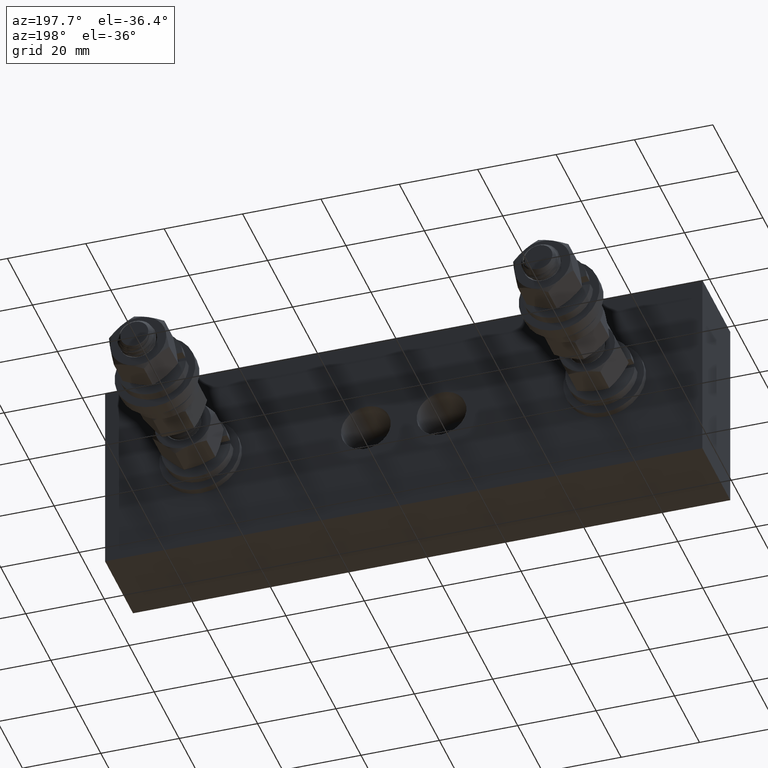
[diagram: clean part render]
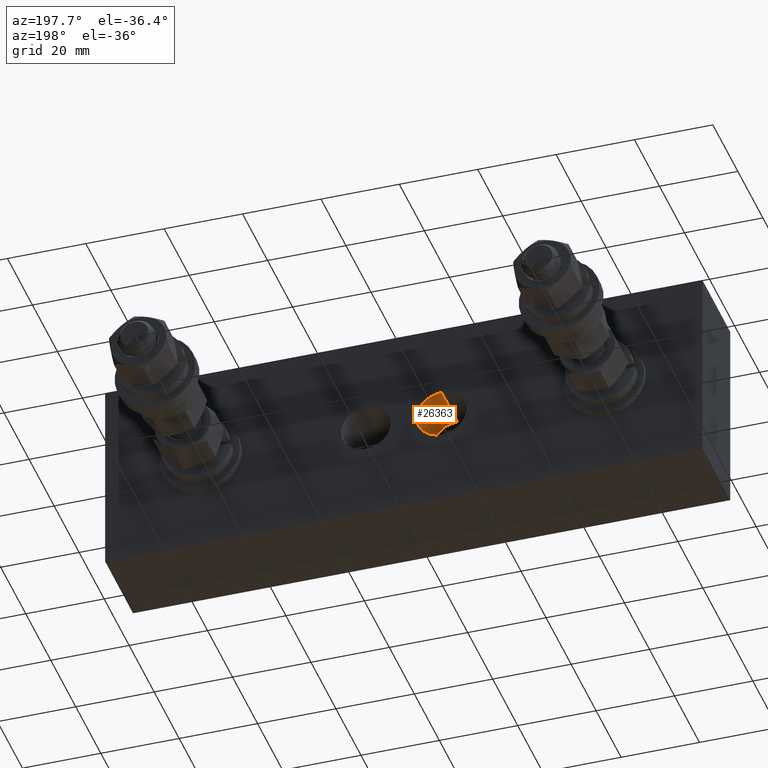
[diagram: same view with one face highlighted and labeled with its STEP entity id]
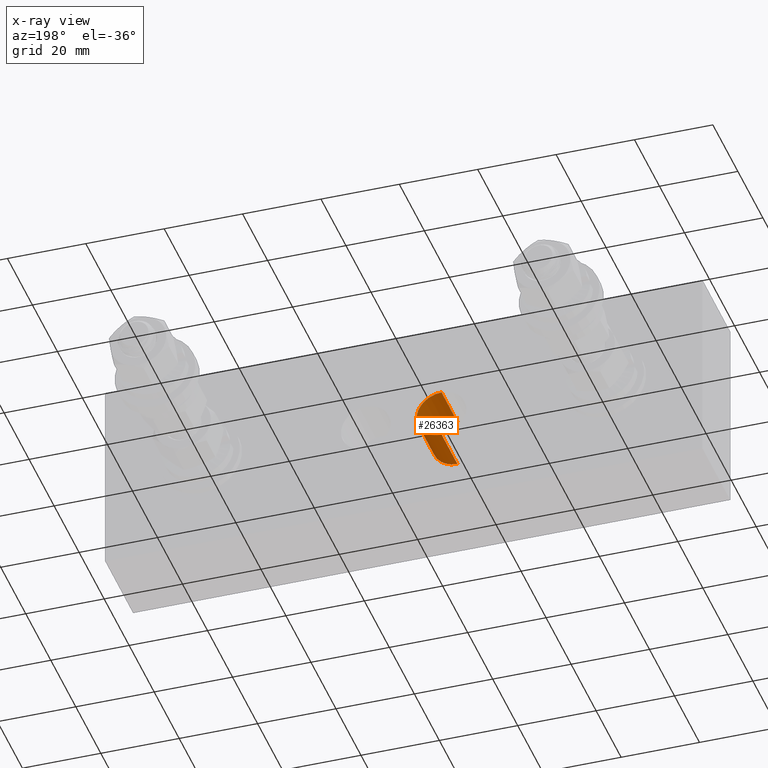
[diagram: x-ray of the same camera — body ghosted, the highlighted face saturated]
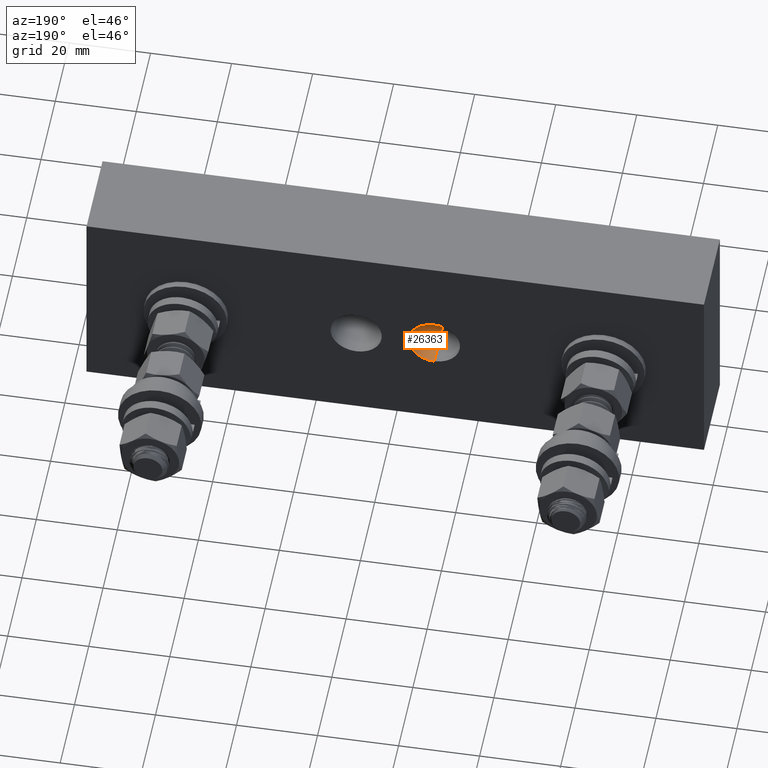
[diagram: same view with one face highlighted and labeled with its STEP entity id]
A machine part, auxiliary view. The second image highlights one B-rep face of the part: STEP entity #26363.
The next image is the same camera in x-ray: the body ghosted, the highlighted face saturated — about 0% of this face is hidden behind the body in this view.
A second angle (auxiliary view) of the same face is appended — the face is thin or edge-on in the first view.
In plain terms, the highlighted cylindrical surface (edge-blend (fillet) strip) has radius 6.35 mm, axis along (-0, 1, -0).
Its self-contained STEP definition (entity closure, byte-faithful):
#2787 = AXIS2_PLACEMENT_3D ( 'NONE', #10277, #10253, #10296 ) ;
#3701 = FACE_OUTER_BOUND ( 'NONE', #10882, .T. ) ;
#3710 = CYLINDRICAL_SURFACE ( 'NONE', #2787, 0.2500000000000000000 ) ;
#9800 = ORIENTED_EDGE ( 'NONE', *, *, #24795, .F. ) ;
#9808 = ORIENTED_EDGE ( 'NONE', *, *, #24813, .F. ) ;
#9839 = ORIENTED_EDGE ( 'NONE', *, *, #24837, .T. ) ;
#9841 = ORIENTED_EDGE ( 'NONE', *, *, #24819, .T. ) ;
#10253 = DIRECTION ( 'NONE',  ( -0.0000000000000000000, 1.000000000000000000, -0.0000000000000000000 ) ) ;
#10277 = CARTESIAN_POINT ( 'NONE',  ( -0.3799999999999992300, 0.4400000000000000000, 0.0000000000000000000 ) ) ;
#10296 = DIRECTION ( 'NONE',  ( 0.0000000000000000000, 0.0000000000000000000, 1.000000000000000000 ) ) ;
#10882 = EDGE_LOOP ( 'NONE', ( #9808, #9800, #9841, #9839 ) ) ;
#20276 = CARTESIAN_POINT ( 'NONE',  ( -0.3799999999999992300, -0.05999999999999997700, 0.2499999999999999700 ) ) ;
#20418 = CARTESIAN_POINT ( 'NONE',  ( -0.3799999999999992300, -0.05999999999999997700, -0.2499999999999999700 ) ) ;
#23308 = VERTEX_POINT ( 'NONE', #40067 ) ;
#23376 = VERTEX_POINT ( 'NONE', #40091 ) ;
#24795 = EDGE_CURVE ( 'NONE', #44065, #44207, #35790, .T. ) ;
#24813 = EDGE_CURVE ( 'NONE', #44207, #23376, #35806, .T. ) ;
#24819 = EDGE_CURVE ( 'NONE', #44065, #23308, #35819, .T. ) ;
#24837 = EDGE_CURVE ( 'NONE', #23308, #23376, #46444, .T. ) ;
#26363 = ADVANCED_FACE ( 'NONE', ( #3701 ), #3710, .F. ) ;
#35790 = CIRCLE ( 'NONE', #44404, 0.2499999999999999700 ) ;
#35806 = LINE ( 'NONE', #45375, #35816 ) ;
#35816 = VECTOR ( 'NONE', #45389, 39.37007874015748100 ) ;
#35819 = LINE ( 'NONE', #45403, #35824 ) ;
#35824 = VECTOR ( 'NONE', #45399, 39.37007874015748100 ) ;
#40067 = CARTESIAN_POINT ( 'NONE',  ( -0.3799999999999992300, 0.4400000000000001100, 0.2500000000000000600 ) ) ;
#40091 = CARTESIAN_POINT ( 'NONE',  ( -0.3799999999999992300, 0.4400000000000001100, -0.2500000000000000600 ) ) ;
#44065 = VERTEX_POINT ( 'NONE', #20276 ) ;
#44207 = VERTEX_POINT ( 'NONE', #20418 ) ;
#44404 = AXIS2_PLACEMENT_3D ( 'NONE', #45310, #45311, #45312 ) ;
#44418 = AXIS2_PLACEMENT_3D ( 'NONE', #45454, #45455, #45456 ) ;
#45310 = CARTESIAN_POINT ( 'NONE',  ( -0.3799999999999992300, -0.05999999999999997700, 0.0000000000000000000 ) ) ;
#45311 = DIRECTION ( 'NONE',  ( -0.0000000000000000000, 1.000000000000000000, -0.0000000000000000000 ) ) ;
#45312 = DIRECTION ( 'NONE',  ( 0.0000000000000000000, 0.0000000000000000000, 1.000000000000000000 ) ) ;
#45375 = CARTESIAN_POINT ( 'NONE',  ( -0.3799999999999992300, 0.4400000000000000000, -0.2500000000000000000 ) ) ;
#45389 = DIRECTION ( 'NONE',  ( -0.0000000000000000000, 1.000000000000000000, -0.0000000000000000000 ) ) ;
#45399 = DIRECTION ( 'NONE',  ( -0.0000000000000000000, 1.000000000000000000, -0.0000000000000000000 ) ) ;
#45403 = CARTESIAN_POINT ( 'NONE',  ( -0.3799999999999992300, 0.4400000000000000000, 0.2500000000000000000 ) ) ;
#45454 = CARTESIAN_POINT ( 'NONE',  ( -0.3799999999999992300, 0.4400000000000001100, 0.0000000000000000000 ) ) ;
#45455 = DIRECTION ( 'NONE',  ( -0.0000000000000000000, 1.000000000000000000, -0.0000000000000000000 ) ) ;
#45456 = DIRECTION ( 'NONE',  ( 0.0000000000000000000, 0.0000000000000000000, 1.000000000000000000 ) ) ;
#46444 = CIRCLE ( 'NONE', #44418, 0.2500000000000000600 ) ;